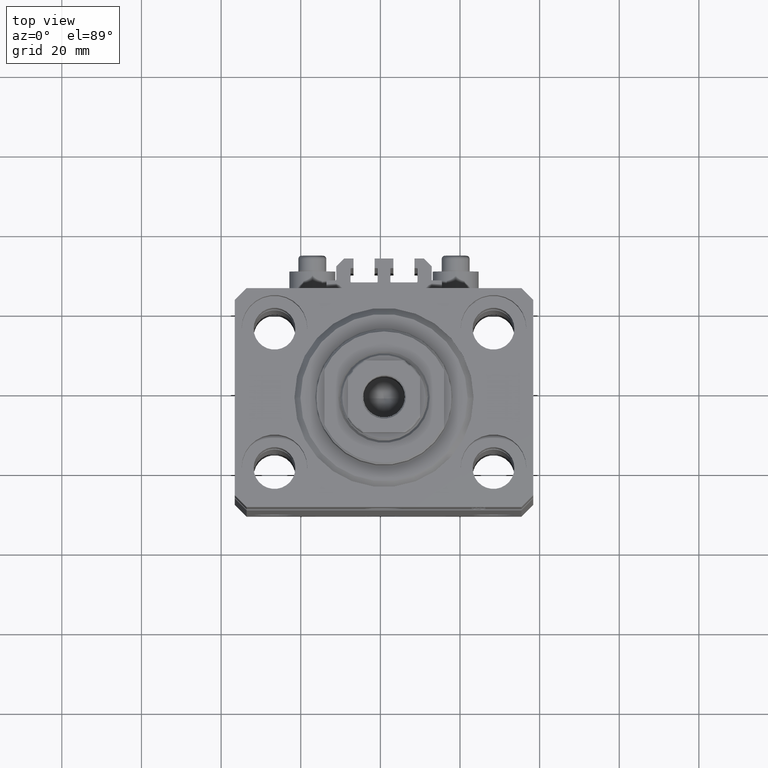
[diagram: clean part render]
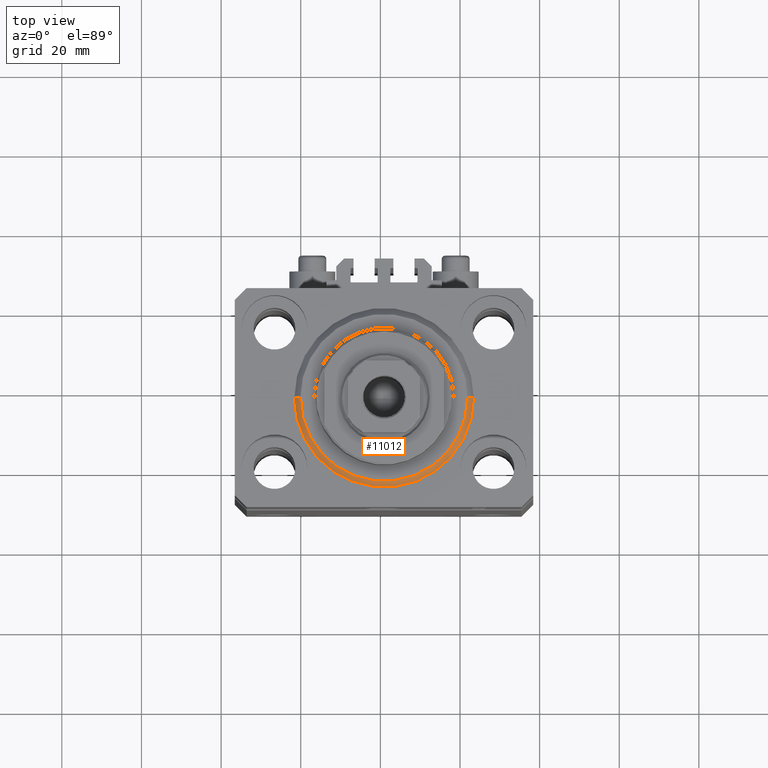
[diagram: same view with one face highlighted and labeled with its STEP entity id]
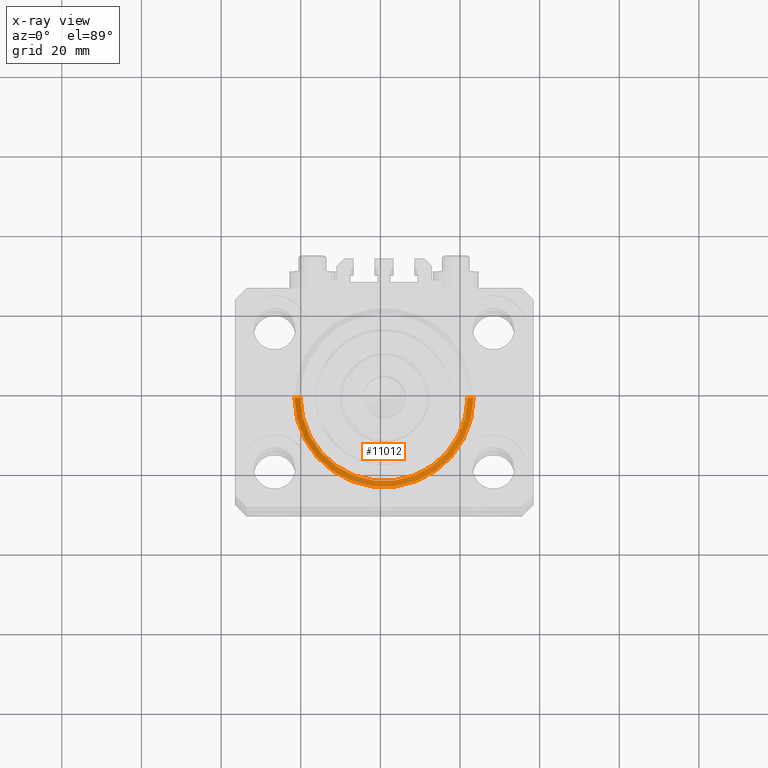
[diagram: x-ray of the same camera — body ghosted, the highlighted face saturated]
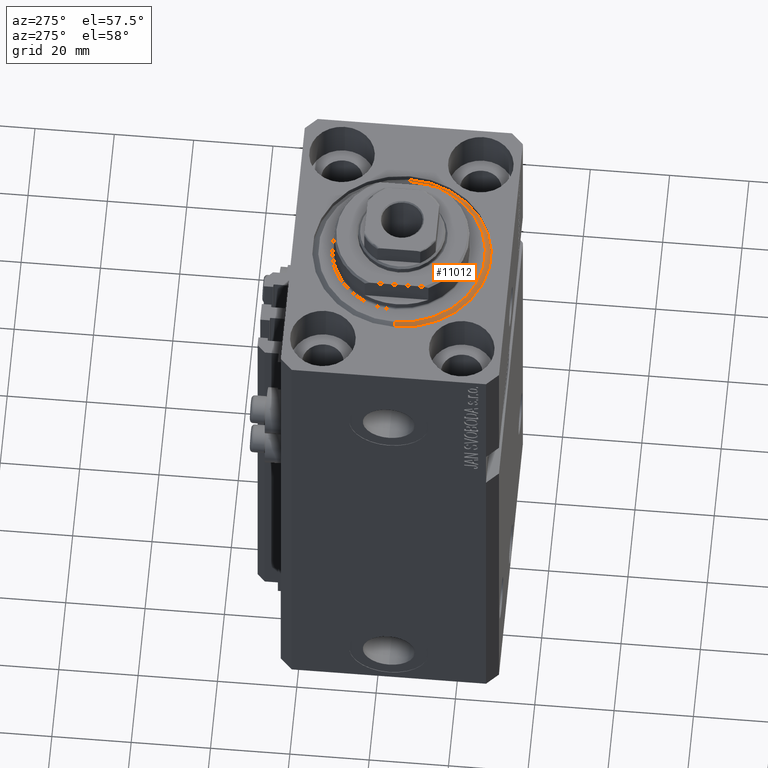
[diagram: same view with one face highlighted and labeled with its STEP entity id]
A machine part, top view. The second image highlights one B-rep face of the part: STEP entity #11012.
The next image is the same camera in x-ray: the body ghosted, the highlighted face saturated — about 0% of this face is hidden behind the body in this view.
A second angle (auxiliary view) of the same face is appended — the face is thin or edge-on in the first view.
In plain terms, the highlighted conical surface has half-angle 45 deg.
Its self-contained STEP definition (entity closure, byte-faithful):
#1026 = LINE ( 'NONE', #8902, #22171 ) ;
#1834 = VERTEX_POINT ( 'NONE', #42218 ) ;
#3573 = DIRECTION ( 'NONE',  ( 1.000000000000000000, 0.000000000000000000, 0.000000000000000000 ) ) ;
#6330 = EDGE_CURVE ( 'NONE', #44323, #16534, #35467, .T. ) ;
#8902 = CARTESIAN_POINT ( 'NONE',  ( 22.50000000000000355, 0.000000000000000000, 1.500000000000001332 ) ) ;
#9438 = VERTEX_POINT ( 'NONE', #38582 ) ;
#9834 = LINE ( 'NONE', #20623, #34000 ) ;
#10186 = AXIS2_PLACEMENT_3D ( 'NONE', #19364, #30163, #29917 ) ;
#11012 = ADVANCED_FACE ( 'NONE', ( #33032 ), #33047, .T. ) ;
#14567 = ORIENTED_EDGE ( 'NONE', *, *, #21087, .F. ) ;
#16534 = VERTEX_POINT ( 'NONE', #38408 ) ;
#19364 = CARTESIAN_POINT ( 'NONE',  ( 0.000000000000000000, 0.000000000000000000, 1.500000000000001332 ) ) ;
#19926 = DIRECTION ( 'NONE',  ( 0.7071067811865500152, 0.000000000000000000, 0.7071067811865451302 ) ) ;
#20623 = CARTESIAN_POINT ( 'NONE',  ( -22.50000000000000355, 2.755455298081545172E-15, 1.500000000000001332 ) ) ;
#21087 = EDGE_CURVE ( 'NONE', #1834, #44323, #9834, .T. ) ;
#21516 = ORIENTED_EDGE ( 'NONE', *, *, #6330, .F. ) ;
#22171 = VECTOR ( 'NONE', #19926, 1000.000000000000114 ) ;
#24212 = EDGE_LOOP ( 'NONE', ( #14567, #42226, #26966, #21516 ) ) ;
#26966 = ORIENTED_EDGE ( 'NONE', *, *, #39881, .T. ) ;
#27337 = AXIS2_PLACEMENT_3D ( 'NONE', #29111, #29356, #47281 ) ;
#28044 = CARTESIAN_POINT ( 'NONE',  ( -22.50000000000000355, 0.000000000000000000, 1.500000000000001332 ) ) ;
#28486 = AXIS2_PLACEMENT_3D ( 'NONE', #29459, #33271, #3573 ) ;
#29111 = CARTESIAN_POINT ( 'NONE',  ( 0.000000000000000000, 0.000000000000000000, 0.000000000000000000 ) ) ;
#29356 = DIRECTION ( 'NONE',  ( -0.000000000000000000, -0.000000000000000000, -1.000000000000000000 ) ) ;
#29459 = CARTESIAN_POINT ( 'NONE',  ( 0.000000000000000000, 0.000000000000000000, 1.500000000000001332 ) ) ;
#29917 = DIRECTION ( 'NONE',  ( 1.000000000000000000, 0.000000000000000000, 0.000000000000000000 ) ) ;
#30163 = DIRECTION ( 'NONE',  ( -0.000000000000000000, -0.000000000000000000, 1.000000000000000000 ) ) ;
#30910 = EDGE_CURVE ( 'NONE', #9438, #1834, #43364, .T. ) ;
#33032 = FACE_OUTER_BOUND ( 'NONE', #24212, .T. ) ;
#33047 = CONICAL_SURFACE ( 'NONE', #28486, 22.50000000000000355, 0.7853981633974517207 ) ;
#33271 = DIRECTION ( 'NONE',  ( -0.000000000000000000, -0.000000000000000000, 1.000000000000000000 ) ) ;
#34000 = VECTOR ( 'NONE', #38578, 1000.000000000000114 ) ;
#35467 = CIRCLE ( 'NONE', #10186, 22.50000000000000355 ) ;
#38408 = CARTESIAN_POINT ( 'NONE',  ( 22.50000000000000355, 2.755455298081545172E-15, 1.500000000000001332 ) ) ;
#38578 = DIRECTION ( 'NONE',  ( -0.7071067811865500152, 8.659560562354963673E-17, 0.7071067811865451302 ) ) ;
#38582 = CARTESIAN_POINT ( 'NONE',  ( 20.99999999999998934, 0.000000000000000000, 0.000000000000000000 ) ) ;
#39881 = EDGE_CURVE ( 'NONE', #9438, #16534, #1026, .T. ) ;
#42218 = CARTESIAN_POINT ( 'NONE',  ( -20.99999999999998934, 2.663606788145492628E-15, 0.000000000000000000 ) ) ;
#42226 = ORIENTED_EDGE ( 'NONE', *, *, #30910, .F. ) ;
#43364 = CIRCLE ( 'NONE', #27337, 20.99999999999998934 ) ;
#44323 = VERTEX_POINT ( 'NONE', #28044 ) ;
#47281 = DIRECTION ( 'NONE',  ( 1.000000000000000000, 0.000000000000000000, 0.000000000000000000 ) ) ;